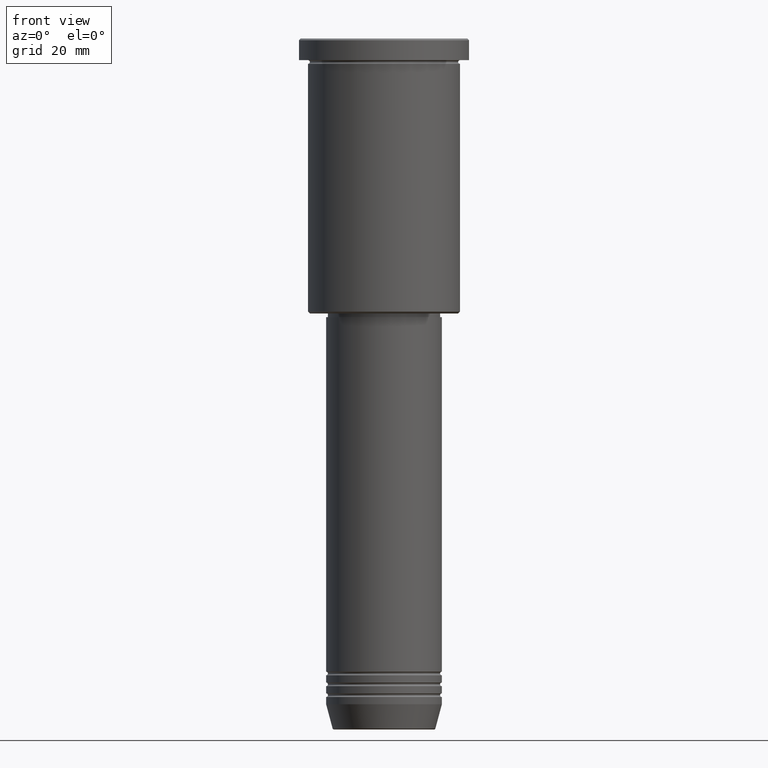
[diagram: clean part render]
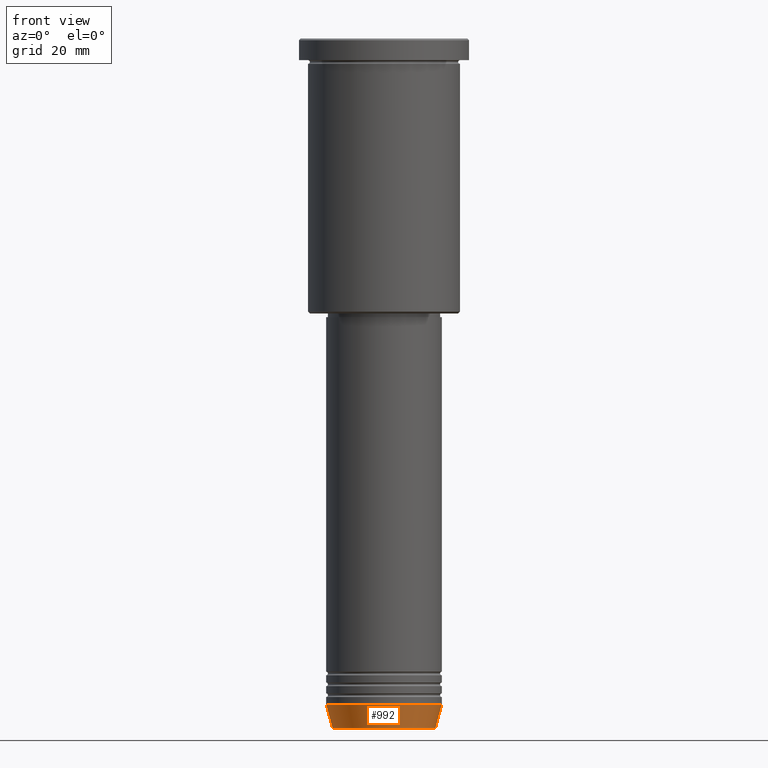
[diagram: same view with one face highlighted and labeled with its STEP entity id]
A machine part, front view. The second image highlights one B-rep face of the part: STEP entity #992.
In plain terms, the highlighted conical surface has half-angle 15 deg.
Its self-contained STEP definition (entity closure, byte-faithful):
#30 = AXIS2_PLACEMENT_3D ( 'NONE', #1012, #813, #911 ) ;
#83 = FACE_OUTER_BOUND ( 'NONE', #783, .T. ) ;
#90 = ORIENTED_EDGE ( 'NONE', *, *, #595, .F. ) ;
#183 = VERTEX_POINT ( 'NONE', #1175 ) ;
#200 = AXIS2_PLACEMENT_3D ( 'NONE', #955, #282, #846 ) ;
#267 = DIRECTION ( 'NONE',  ( 0.2588190451025213501, 0.000000000000000000, 0.9659258262890680902 ) ) ;
#282 = DIRECTION ( 'NONE',  ( -0.000000000000000000, -0.000000000000000000, 1.000000000000000000 ) ) ;
#294 = CARTESIAN_POINT ( 'NONE',  ( -14.22365507213719660, 1.850665122131324126E-15, -190.6294095225512706 ) ) ;
#315 = CONICAL_SURFACE ( 'NONE', #375, 16.00000000000000000, 0.2617993877991500740 ) ;
#375 = AXIS2_PLACEMENT_3D ( 'NONE', #1177, #736, #440 ) ;
#386 = EDGE_CURVE ( 'NONE', #807, #841, #1145, .T. ) ;
#440 = DIRECTION ( 'NONE',  ( 1.000000000000000000, 0.000000000000000000, 0.000000000000000000 ) ) ;
#473 = CIRCLE ( 'NONE', #30, 16.00000000000000000 ) ;
#595 = EDGE_CURVE ( 'NONE', #807, #742, #1106, .T. ) ;
#652 = LINE ( 'NONE', #762, #695 ) ;
#687 = EDGE_CURVE ( 'NONE', #742, #183, #473, .T. ) ;
#695 = VECTOR ( 'NONE', #267, 1000.000000000000000 ) ;
#725 = CARTESIAN_POINT ( 'NONE',  ( -16.00000000000000000, 1.959434878635765131E-15, -184.0000000000000284 ) ) ;
#736 = DIRECTION ( 'NONE',  ( -0.000000000000000000, -0.000000000000000000, 1.000000000000000000 ) ) ;
#742 = VERTEX_POINT ( 'NONE', #929 ) ;
#762 = CARTESIAN_POINT ( 'NONE',  ( 16.00000000000000000, 0.000000000000000000, -184.0000000000000284 ) ) ;
#783 = EDGE_LOOP ( 'NONE', ( #90, #928, #963, #1045 ) ) ;
#807 = VERTEX_POINT ( 'NONE', #294 ) ;
#813 = DIRECTION ( 'NONE',  ( -0.000000000000000000, -0.000000000000000000, 1.000000000000000000 ) ) ;
#841 = VERTEX_POINT ( 'NONE', #1122 ) ;
#846 = DIRECTION ( 'NONE',  ( 1.000000000000000000, 0.000000000000000000, 0.000000000000000000 ) ) ;
#887 = VECTOR ( 'NONE', #1100, 1000.000000000000000 ) ;
#911 = DIRECTION ( 'NONE',  ( 1.000000000000000000, 0.000000000000000000, 0.000000000000000000 ) ) ;
#928 = ORIENTED_EDGE ( 'NONE', *, *, #386, .T. ) ;
#929 = CARTESIAN_POINT ( 'NONE',  ( -16.00000000000000000, 1.959434878635765131E-15, -184.0000000000000284 ) ) ;
#955 = CARTESIAN_POINT ( 'NONE',  ( 0.000000000000000000, 0.000000000000000000, -190.6294095225512706 ) ) ;
#963 = ORIENTED_EDGE ( 'NONE', *, *, #1176, .T. ) ;
#992 = ADVANCED_FACE ( 'NONE', ( #83 ), #315, .T. ) ;
#1012 = CARTESIAN_POINT ( 'NONE',  ( 0.000000000000000000, 0.000000000000000000, -184.0000000000000284 ) ) ;
#1045 = ORIENTED_EDGE ( 'NONE', *, *, #687, .F. ) ;
#1100 = DIRECTION ( 'NONE',  ( -0.2588190451025213501, 3.169619151431772337E-17, 0.9659258262890680902 ) ) ;
#1106 = LINE ( 'NONE', #725, #887 ) ;
#1122 = CARTESIAN_POINT ( 'NONE',  ( 14.22365507213719660, 0.000000000000000000, -190.6294095225512706 ) ) ;
#1145 = CIRCLE ( 'NONE', #200, 14.22365507213719660 ) ;
#1175 = CARTESIAN_POINT ( 'NONE',  ( 16.00000000000000000, 0.000000000000000000, -184.0000000000000284 ) ) ;
#1176 = EDGE_CURVE ( 'NONE', #841, #183, #652, .T. ) ;
#1177 = CARTESIAN_POINT ( 'NONE',  ( 0.000000000000000000, 0.000000000000000000, -184.0000000000000284 ) ) ;